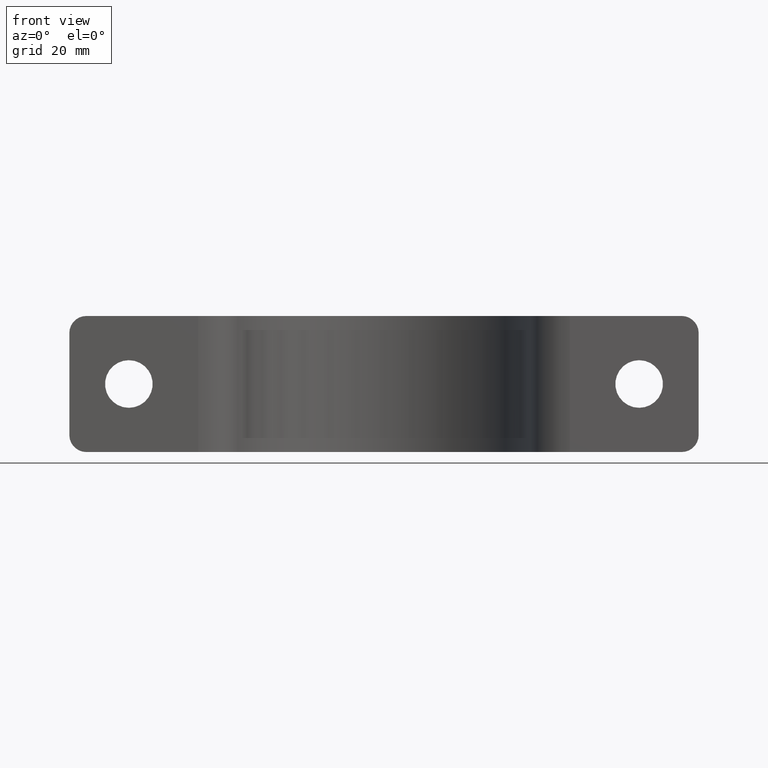
[diagram: clean part render]
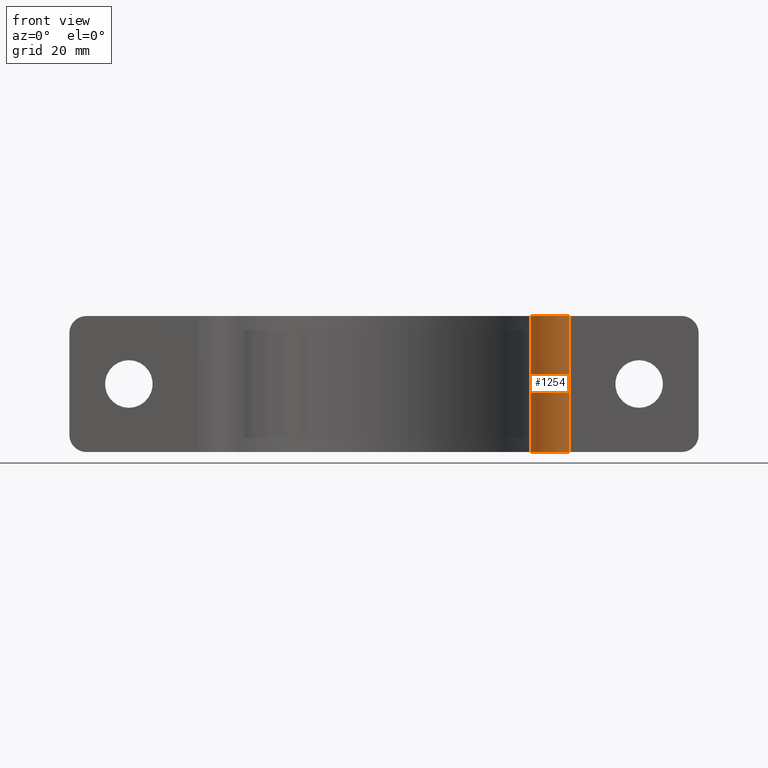
[diagram: same view with one face highlighted and labeled with its STEP entity id]
A machine part, front view. The second image highlights one B-rep face of the part: STEP entity #1254.
In plain terms, the highlighted cylindrical surface (partial cylindrical patch) has radius 12 mm, axis along (0, 0, -1).
Its self-contained STEP definition (entity closure, byte-faithful):
#4 = CARTESIAN_POINT ( 'NONE',  ( 54.60769176590418539, 2.499999999999613642, -20.00000000000001776 ) ) ;
#85 = EDGE_CURVE ( 'NONE', #934, #240, #792, .T. ) ;
#87 = CARTESIAN_POINT ( 'NONE',  ( 54.60769176590418539, 14.49999999999962341, 20.00000000000001776 ) ) ;
#104 = DIRECTION ( 'NONE',  ( -1.000000000000000000, -4.336808689942008861E-16, 0.000000000000000000 ) ) ;
#157 = FACE_OUTER_BOUND ( 'NONE', #712, .T. ) ;
#204 = ORIENTED_EDGE ( 'NONE', *, *, #453, .T. ) ;
#212 = CARTESIAN_POINT ( 'NONE',  ( 43.00959793951753340, 11.42035398230079046, 20.00000000000001776 ) ) ;
#215 = CARTESIAN_POINT ( 'NONE',  ( 43.00959793951753340, 11.42035398230079046, -20.00000000000001776 ) ) ;
#240 = VERTEX_POINT ( 'NONE', #4 ) ;
#337 = LINE ( 'NONE', #1053, #595 ) ;
#392 = EDGE_CURVE ( 'NONE', #807, #1363, #337, .T. ) ;
#407 = EDGE_CURVE ( 'NONE', #807, #934, #540, .T. ) ;
#419 = AXIS2_PLACEMENT_3D ( 'NONE', #87, #1019, #104 ) ;
#453 = EDGE_CURVE ( 'NONE', #1363, #240, #884, .T. ) ;
#540 = CIRCLE ( 'NONE', #419, 12.00000000000002487 ) ;
#595 = VECTOR ( 'NONE', #614, 1000.000000000000000 ) ;
#614 = DIRECTION ( 'NONE',  ( 0.000000000000000000, 0.000000000000000000, -1.000000000000000000 ) ) ;
#665 = ORIENTED_EDGE ( 'NONE', *, *, #407, .F. ) ;
#697 = CYLINDRICAL_SURFACE ( 'NONE', #1640, 12.00000000000002487 ) ;
#705 = DIRECTION ( 'NONE',  ( 0.000000000000000000, 0.000000000000000000, -1.000000000000000000 ) ) ;
#712 = EDGE_LOOP ( 'NONE', ( #204, #1630, #665, #1708 ) ) ;
#771 = DIRECTION ( 'NONE',  ( -1.000000000000000000, -4.336808689942008861E-16, 0.000000000000000000 ) ) ;
#792 = LINE ( 'NONE', #1435, #828 ) ;
#807 = VERTEX_POINT ( 'NONE', #212 ) ;
#828 = VECTOR ( 'NONE', #1165, 1000.000000000000000 ) ;
#884 = CIRCLE ( 'NONE', #1520, 12.00000000000002487 ) ;
#934 = VERTEX_POINT ( 'NONE', #1605 ) ;
#1019 = DIRECTION ( 'NONE',  ( -0.000000000000000000, -0.000000000000000000, 1.000000000000000000 ) ) ;
#1045 = DIRECTION ( 'NONE',  ( -0.000000000000000000, -0.000000000000000000, 1.000000000000000000 ) ) ;
#1053 = CARTESIAN_POINT ( 'NONE',  ( 43.00959793951753340, 11.42035398230079046, 20.00000000000001776 ) ) ;
#1165 = DIRECTION ( 'NONE',  ( 0.000000000000000000, 0.000000000000000000, -1.000000000000000000 ) ) ;
#1254 = ADVANCED_FACE ( 'NONE', ( #157 ), #697, .T. ) ;
#1265 = DIRECTION ( 'NONE',  ( -1.000000000000000000, -4.336808689942008861E-16, 0.000000000000000000 ) ) ;
#1363 = VERTEX_POINT ( 'NONE', #215 ) ;
#1435 = CARTESIAN_POINT ( 'NONE',  ( 54.60769176590418539, 2.499999999999613642, 20.00000000000001776 ) ) ;
#1460 = CARTESIAN_POINT ( 'NONE',  ( 54.60769176590418539, 14.49999999999962341, -20.00000000000001776 ) ) ;
#1520 = AXIS2_PLACEMENT_3D ( 'NONE', #1460, #1045, #771 ) ;
#1605 = CARTESIAN_POINT ( 'NONE',  ( 54.60769176590418539, 2.499999999999613642, 20.00000000000001776 ) ) ;
#1630 = ORIENTED_EDGE ( 'NONE', *, *, #85, .F. ) ;
#1640 = AXIS2_PLACEMENT_3D ( 'NONE', #1660, #705, #1265 ) ;
#1660 = CARTESIAN_POINT ( 'NONE',  ( 54.60769176590418539, 14.49999999999962341, 20.00000000000001776 ) ) ;
#1708 = ORIENTED_EDGE ( 'NONE', *, *, #392, .T. ) ;